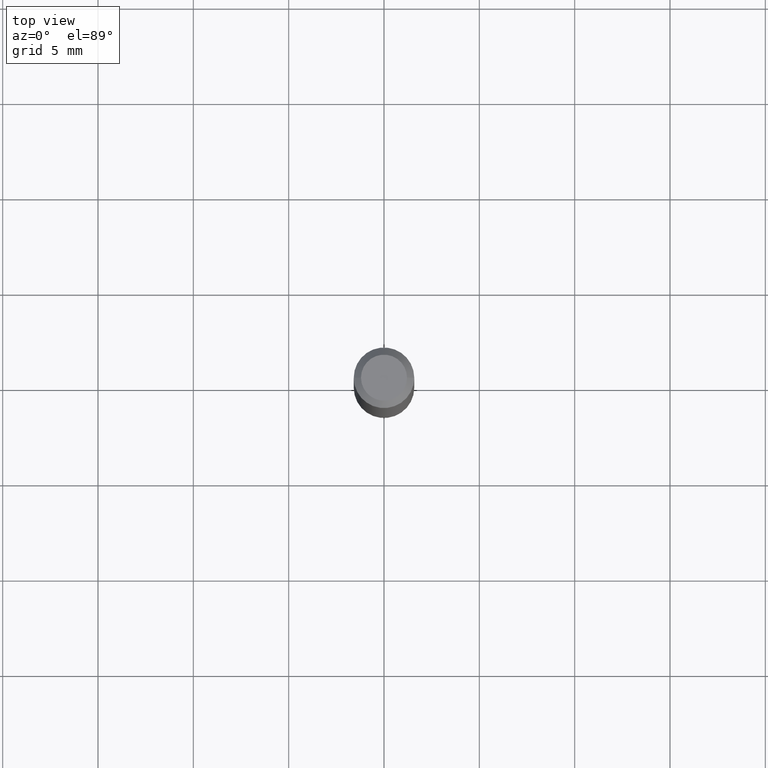
[diagram: clean part render]
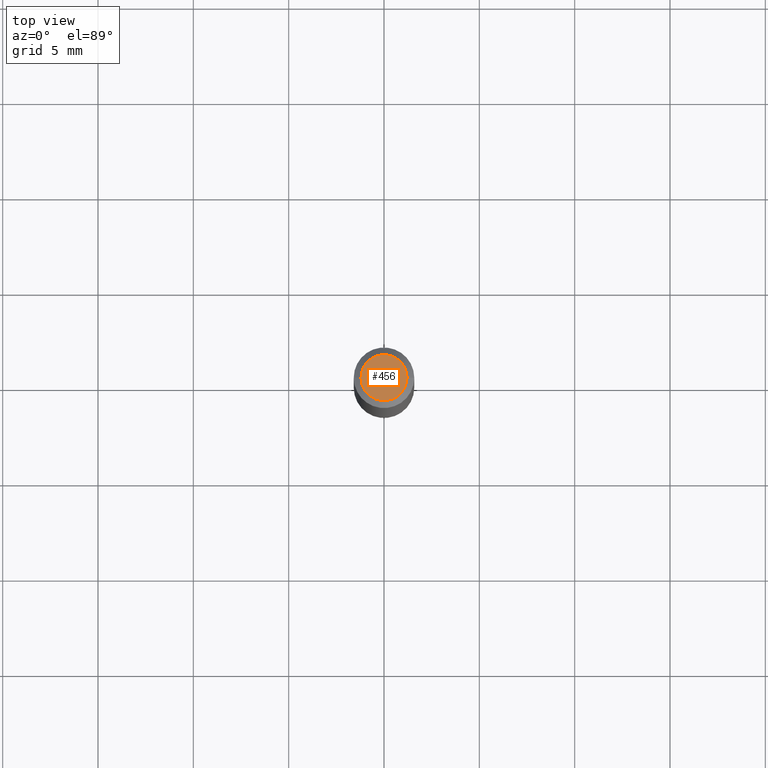
[diagram: same view with one face highlighted and labeled with its STEP entity id]
A machine part, top view. The second image highlights one B-rep face of the part: STEP entity #456.
In plain terms, the highlighted planar face has unit normal (0, -0, -1).
Its self-contained STEP definition (entity closure, byte-faithful):
#65 = DIRECTION ( 'NONE',  ( -2.445468806185136597E-29, 3.491481338843145583E-15, 1.000000000000000000 ) ) ;
#68 = DIRECTION ( 'NONE',  ( -1.000000000000000000, 6.982962677686265922E-15, -4.876176775795935793E-29 ) ) ;
#74 = CIRCLE ( 'NONE', #249, 0.04749999999999999362 ) ;
#75 = AXIS2_PLACEMENT_3D ( 'NONE', #104, #321, #68 ) ;
#104 = CARTESIAN_POINT ( 'NONE',  ( 3.316907271900976096E-16, 0.04749999999999999362, -2.904368096790510281E-16 ) ) ;
#126 = EDGE_CURVE ( 'NONE', #134, #260, #388, .T. ) ;
#134 = VERTEX_POINT ( 'NONE', #418 ) ;
#143 = CARTESIAN_POINT ( 'NONE',  ( 6.093689898318465335E-45, -8.700174179635472181E-31, -2.491828921680032634E-16 ) ) ;
#184 = PLANE ( 'NONE',  #75 ) ;
#190 = EDGE_CURVE ( 'NONE', #260, #134, #74, .T. ) ;
#208 = EDGE_LOOP ( 'NONE', ( #379, #364 ) ) ;
#215 = FACE_OUTER_BOUND ( 'NONE', #208, .T. ) ;
#243 = DIRECTION ( 'NONE',  ( 1.000000000000000000, -6.982962677686267499E-15, 4.852736867747366768E-29 ) ) ;
#249 = AXIS2_PLACEMENT_3D ( 'NONE', #143, #65, #354 ) ;
#260 = VERTEX_POINT ( 'NONE', #358 ) ;
#288 = AXIS2_PLACEMENT_3D ( 'NONE', #359, #387, #243 ) ;
#321 = DIRECTION ( 'NONE',  ( 2.438088387897960049E-29, -3.491481338843145188E-15, -1.000000000000000000 ) ) ;
#354 = DIRECTION ( 'NONE',  ( 1.000000000000000000, -6.982962677686267499E-15, 4.852736867747366768E-29 ) ) ;
#358 = CARTESIAN_POINT ( 'NONE',  ( 0.04749999999999999362, -4.035134999187582567E-16, -2.491828921680006996E-16 ) ) ;
#359 = CARTESIAN_POINT ( 'NONE',  ( 6.093689898318465335E-45, -8.700174179635472181E-31, -2.491828921680032634E-16 ) ) ;
#364 = ORIENTED_EDGE ( 'NONE', *, *, #190, .T. ) ;
#379 = ORIENTED_EDGE ( 'NONE', *, *, #126, .T. ) ;
#387 = DIRECTION ( 'NONE',  ( -2.445468806185136597E-29, 3.491481338843145583E-15, 1.000000000000000000 ) ) ;
#388 = CIRCLE ( 'NONE', #288, 0.04749999999999999362 ) ;
#418 = CARTESIAN_POINT ( 'NONE',  ( -0.04749999999999999362, 3.578768372314206562E-16, -2.491828921680056300E-16 ) ) ;
#456 = ADVANCED_FACE ( 'NONE', ( #215 ), #184, .F. ) ;